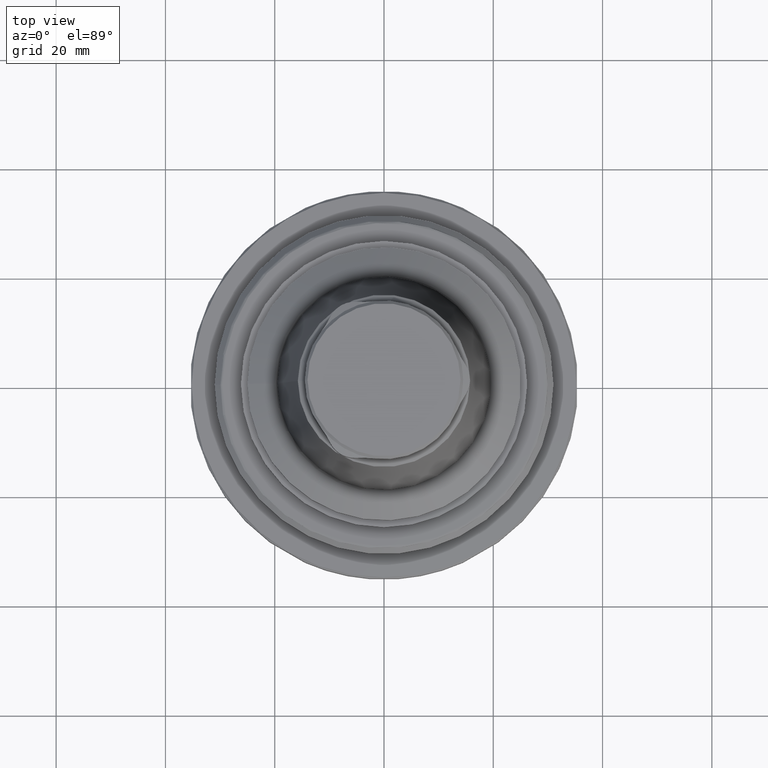
[diagram: clean part render]
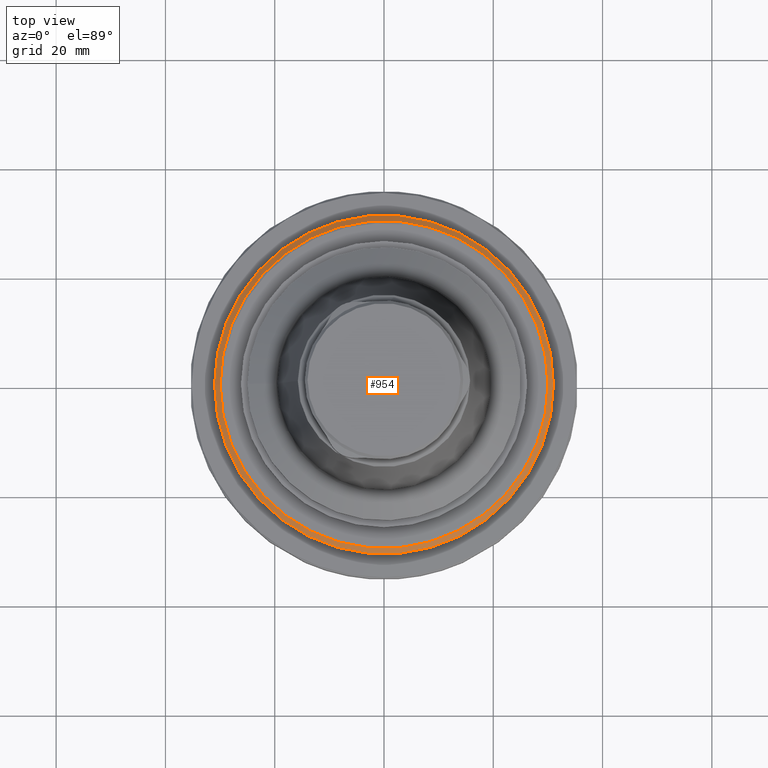
[diagram: same view with one face highlighted and labeled with its STEP entity id]
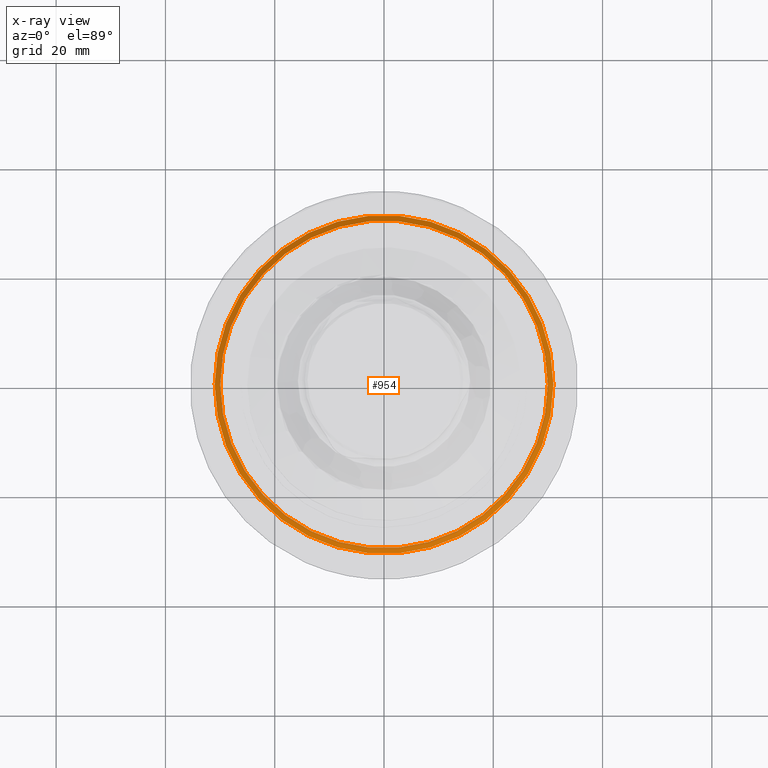
[diagram: x-ray of the same camera — body ghosted, the highlighted face saturated]
A machine part, top view. The second image highlights one B-rep face of the part: STEP entity #954.
The next image is the same camera in x-ray: the body ghosted, the highlighted face saturated — about 0% of this face is hidden behind the body in this view.
In plain terms, the highlighted conical surface has half-angle 45 deg.
Its self-contained STEP definition (entity closure, byte-faithful):
#95=CONICAL_SURFACE('',#1083,29.9757350979542,0.785398163397448);
#163=CIRCLE('',#1082,29.9757350979542);
#164=CIRCLE('',#1084,31.);
#404=ORIENTED_EDGE('',*,*,#539,.F.);
#405=ORIENTED_EDGE('',*,*,#538,.T.);
#538=EDGE_CURVE('',#629,#629,#163,.T.);
#539=EDGE_CURVE('',#630,#630,#164,.T.);
#629=VERTEX_POINT('',#1803);
#630=VERTEX_POINT('',#1806);
#758=EDGE_LOOP('',(#404));
#759=EDGE_LOOP('',(#405));
#854=FACE_BOUND('',#758,.T.);
#855=FACE_BOUND('',#759,.T.);
#954=ADVANCED_FACE('',(#854,#855),#95,.T.);
#1082=AXIS2_PLACEMENT_3D('',#1802,#1339,#1340);
#1083=AXIS2_PLACEMENT_3D('',#1804,#1341,#1342);
#1084=AXIS2_PLACEMENT_3D('',#1805,#1343,#1344);
#1339=DIRECTION('',(-5.47430718319515E-16,-9.52839907700963E-18,-1.));
#1340=DIRECTION('',(-1.,8.32667268468868E-16,5.47430716006892E-16));
#1341=DIRECTION('',(-5.47430718319515E-16,-9.52839907700963E-18,-1.));
#1342=DIRECTION('',(-1.,8.32667268468868E-16,5.47430716006892E-16));
#1343=DIRECTION('',(-5.47430718319515E-16,-9.52839907700963E-18,-1.));
#1344=DIRECTION('',(-1.,8.32667268468868E-16,5.47430716006892E-16));
#1802=CARTESIAN_POINT('',(-8.54487862391023E-14,-9.81662095849734E-14,5.32426490204584));
#1803=CARTESIAN_POINT('',(-29.9757350979542,-7.32063961206135E-14,5.32426490204586));
#1804=CARTESIAN_POINT('',(-8.54487862391023E-14,-9.81662095849734E-14,5.32426490204584));
#1805=CARTESIAN_POINT('',(-8.60095003101787E-14,-9.81759691897207E-14,4.3));
#1806=CARTESIAN_POINT('',(-31.0000000000001,-7.23632838671858E-14,4.30000000000001));